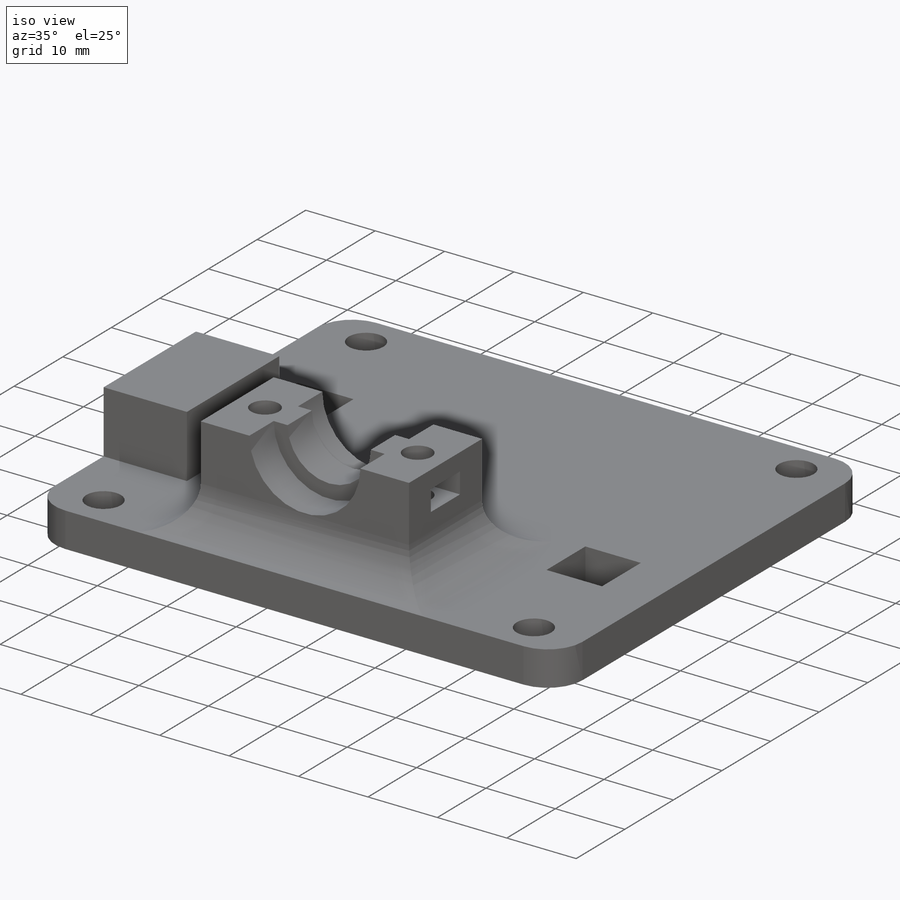
[diagram: iso view]
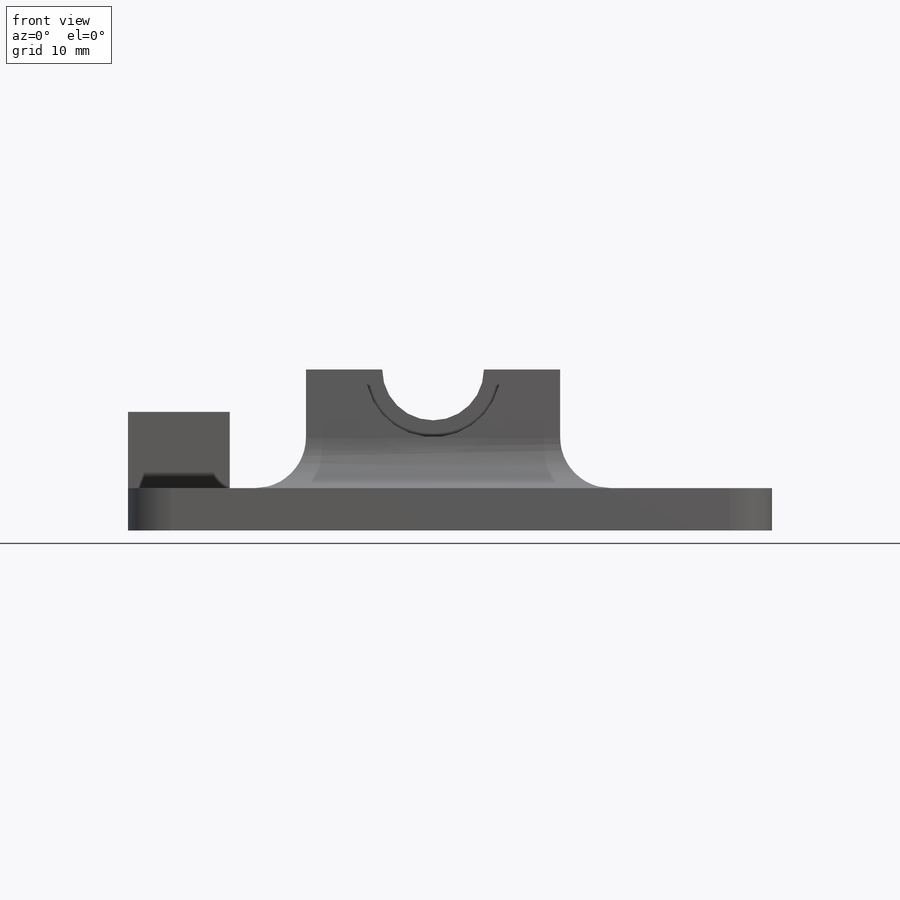
[diagram: front view]
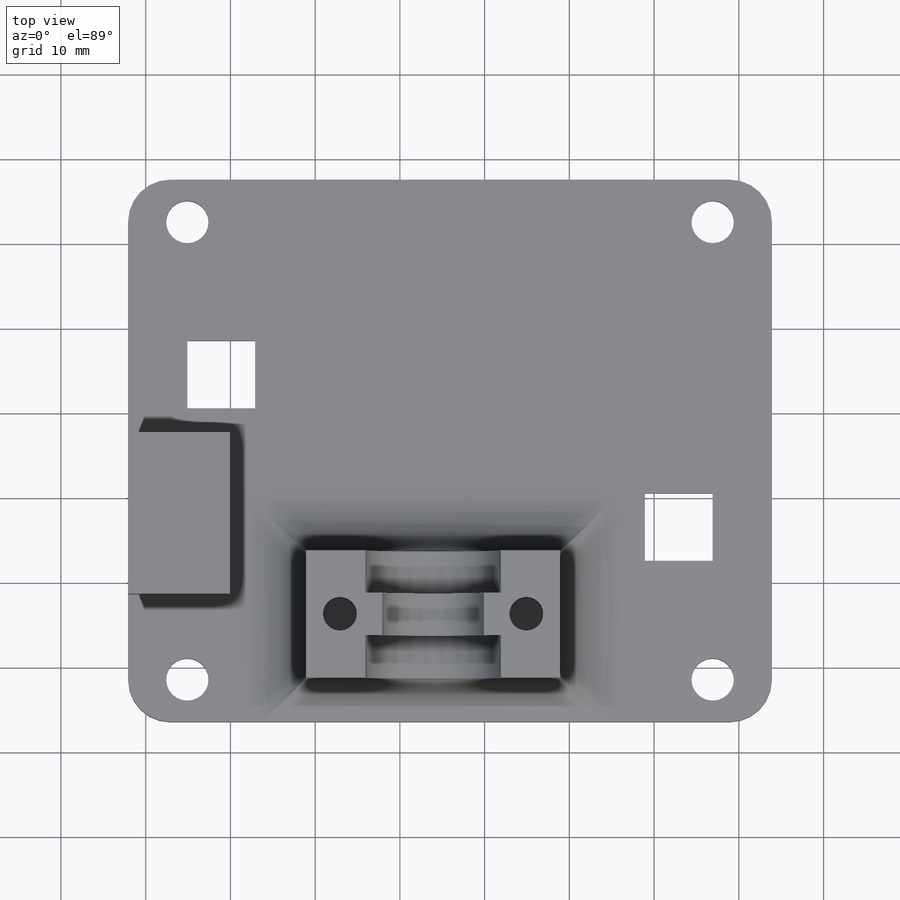
[diagram: top view]
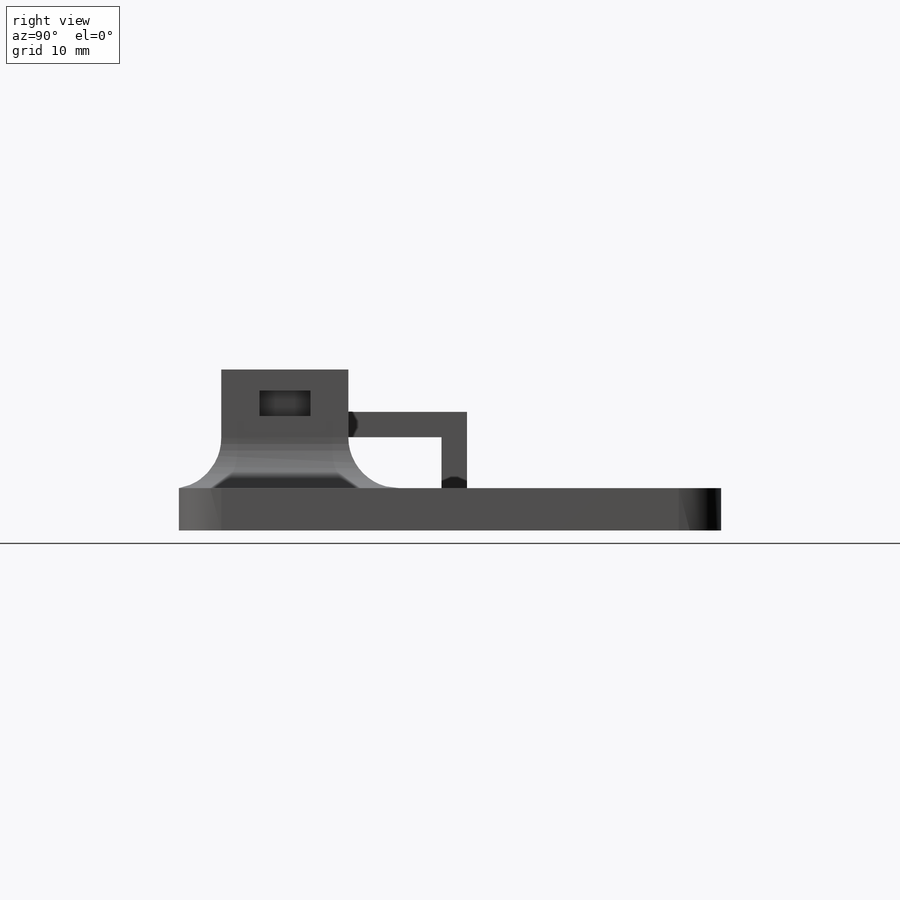
[diagram: right view]
SOLIDWORKS PART (.sldprt)
format: sldprt  version: not decoded by parser v0  size: 422,912 bytes
history: native  units: mm
features: sketch x11, cut_extrude x8, extrude x3, fillet x2, material x1 (+13 scaffold rows collapsed)
feature tree (38):
  scaffold x13  (default folders/planes/origin — collapsed)
  material  "Material <not specified>"
  sketch  "Sketch1"  dims[c1.D3=~4.793347mm c1.D1=76.0mm c1.D2=64.0mm c2.D3=5.0mm c2.D4=7.0mm c2.D5=5.0mm c2.D6=30.0mm c2.D7=14.0mm c2.D8=15.0mm c3.D5=7.0mm c3.D6=5.0mm c3.D7=5.0mm c3.D8=7.0mm c3.D9=7.0mm c3.D10=5.0mm]
  extrude  "Boss-Extrude1"  Depth=5mm
  sketch  "Sketch2"  dims[D1=30.0mm D2=15.0mm D3=15.0mm D4=5.0mm]
  extrude  "Boss-Extrude2"  Depth=14mm
  sketch  "Sketch3"  dims[D1=~14.297843mm]
  cut_extrude  "Cut-Extrude1"  [1 undecoded]
  sketch  "Sketch4"  dims[D1=~8.116753mm]
  cut_extrude  "Cut-Extrude2"  Depth=5mm
  sketch  "Sketch5"  dims[D1=~8.162504mm]
  cut_extrude  "Cut-Extrude3"  Depth=5mm
  fillet  "Fillet1"  Radius=6mm
  sketch  "Sketch6"  dims[D1=15.0mm D2=19.0mm D3=8.0mm D4=8.0mm D5=15.0mm D6=19.0mm D7=8.0mm D8=8.0mm]
  cut_extrude  "Cut-Extrude4"  [1 undecoded]
  sketch  "Sketch7"  dims[D1=19.0mm D2=12.0mm D3=0.0mm D4=15.0mm]
  extrude  "Boss-Extrude3"  Depth=9mm
  sketch  "Sketch9"  dims[D1=6.0mm D2=13.0mm D3=3.0mm D4=3.0mm]
  cut_extrude  "Cut-Extrude5"  Depth=14mm
  fillet  "Fillet3"  Radius=5mm
  sketch  "Sketch10"  dims[D1=11.0mm]
  cut_extrude  "Cut-Extrude6"  Depth=9mm
  sketch  "Sketch11"  dims[D1=6.0mm D2=3.0mm D3=1.5mm D4=3.0mm]
  cut_extrude  "Cut-Extrude7"  Depth=6.5mm
  sketch  "Sketch13"  dims[D1=6.0mm D2=3.0mm D3=1.5mm D4=3.0mm]
  cut_extrude  "Cut-Extrude8"  Depth=6.5mm
decode coverage: 22 of 24 modeling features carry decoded parameters
note: ~ marks probable driven/reference dimensions
note: 2 parameter values undecoded
note: suppression state not decoded; provenance and decode notes live in map.json
